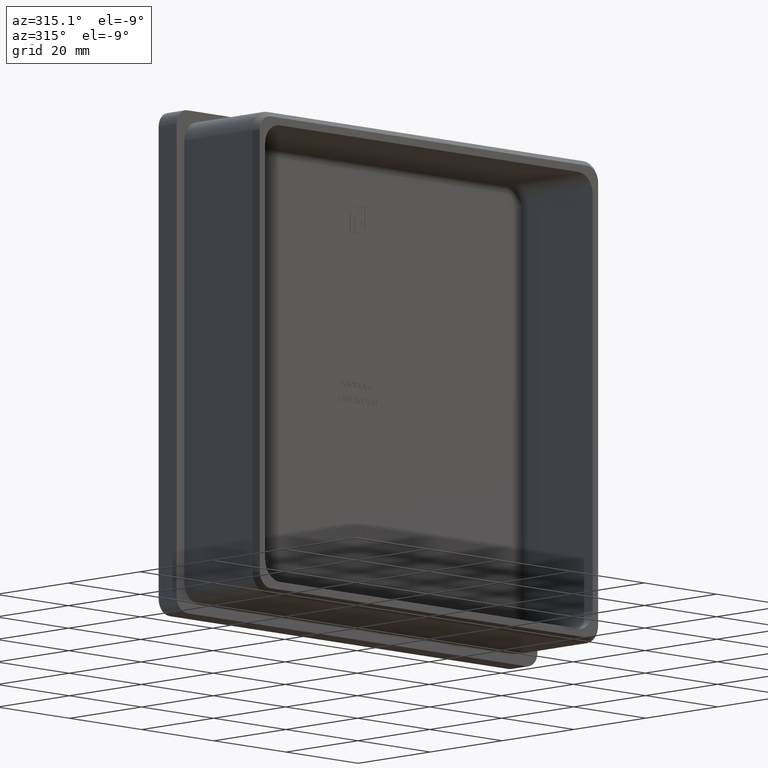
[diagram: clean part render]
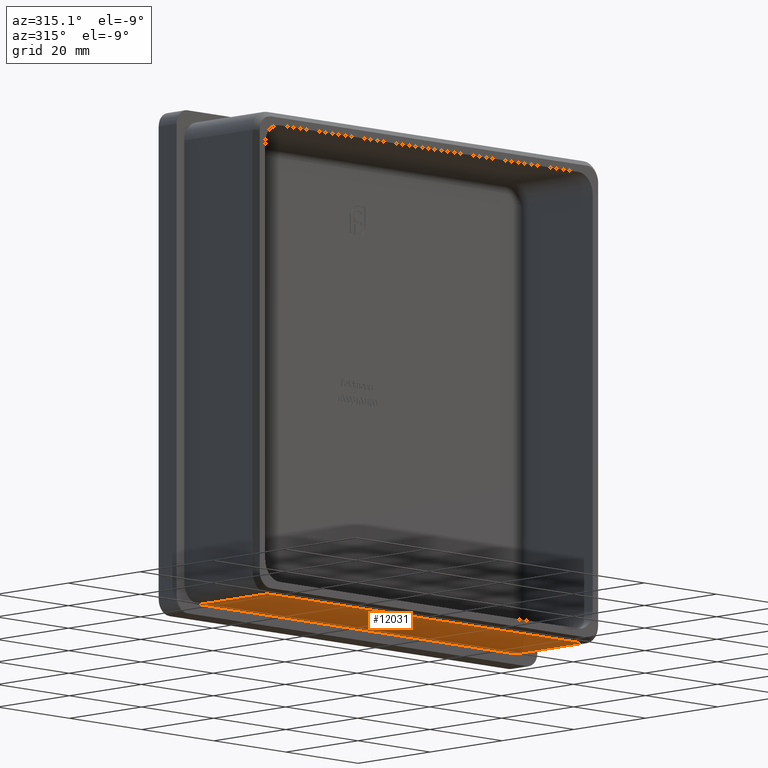
[diagram: same view with one face highlighted and labeled with its STEP entity id]
A machine part, auxiliary view. The second image highlights one B-rep face of the part: STEP entity #12031.
In plain terms, the highlighted planar face has unit normal (-0, 0, 1).
Its self-contained STEP definition (entity closure, byte-faithful):
#107 = CARTESIAN_POINT ( 'NONE',  ( -43.90000000000000568, -20.00000000000000000, -47.90000000000001279 ) ) ;
#421 = EDGE_CURVE ( 'NONE', #14256, #17906, #13255, .T. ) ;
#1428 = CARTESIAN_POINT ( 'NONE',  ( 43.89999999999997726, 0.000000000000000000, -47.90000000000001279 ) ) ;
#2065 = AXIS2_PLACEMENT_3D ( 'NONE', #8983, #17408, #11604 ) ;
#2102 = ORIENTED_EDGE ( 'NONE', *, *, #12262, .T. ) ;
#2745 = DIRECTION ( 'NONE',  ( -1.000000000000000000, 0.000000000000000000, -0.000000000000000000 ) ) ;
#2919 = DIRECTION ( 'NONE',  ( 0.000000000000000000, 1.000000000000000000, -0.000000000000000000 ) ) ;
#3433 = CARTESIAN_POINT ( 'NONE',  ( -47.90000000000001279, -0.000000000000000000, -47.90000000000001279 ) ) ;
#3459 = CARTESIAN_POINT ( 'NONE',  ( 43.90000000000000568, -18.99999999999998579, -47.90000000000001279 ) ) ;
#3795 = EDGE_CURVE ( 'NONE', #6249, #14256, #17591, .T. ) ;
#4126 = VECTOR ( 'NONE', #2745, 1000.000000000000000 ) ;
#4381 = ORIENTED_EDGE ( 'NONE', *, *, #3795, .T. ) ;
#4535 = VECTOR ( 'NONE', #11702, 1000.000000000000000 ) ;
#5661 = CARTESIAN_POINT ( 'NONE',  ( -43.90000000000000568, -18.99999999999998579, -47.90000000000001279 ) ) ;
#5677 = FACE_OUTER_BOUND ( 'NONE', #10477, .T. ) ;
#5739 = VERTEX_POINT ( 'NONE', #13023 ) ;
#6249 = VERTEX_POINT ( 'NONE', #11287 ) ;
#7922 = EDGE_CURVE ( 'NONE', #5739, #6249, #10975, .T. ) ;
#8983 = CARTESIAN_POINT ( 'NONE',  ( -47.90000000000001279, -20.00000000000000000, -47.90000000000001279 ) ) ;
#9278 = VECTOR ( 'NONE', #13125, 1000.000000000000000 ) ;
#9359 = LINE ( 'NONE', #5661, #4126 ) ;
#10106 = CARTESIAN_POINT ( 'NONE',  ( 43.90000000000000568, -20.00000000000000000, -47.90000000000001279 ) ) ;
#10477 = EDGE_LOOP ( 'NONE', ( #16605, #2102, #11615, #4381 ) ) ;
#10975 = LINE ( 'NONE', #107, #17991 ) ;
#11287 = CARTESIAN_POINT ( 'NONE',  ( -43.90000000000000568, 0.000000000000000000, -47.90000000000001279 ) ) ;
#11604 = DIRECTION ( 'NONE',  ( 1.000000000000000000, 0.000000000000000000, 0.000000000000000000 ) ) ;
#11615 = ORIENTED_EDGE ( 'NONE', *, *, #7922, .T. ) ;
#11702 = DIRECTION ( 'NONE',  ( -0.000000000000000000, -1.000000000000000000, -0.000000000000000000 ) ) ;
#12031 = ADVANCED_FACE ( 'NONE', ( #5677 ), #14336, .F. ) ;
#12262 = EDGE_CURVE ( 'NONE', #17906, #5739, #9359, .T. ) ;
#13023 = CARTESIAN_POINT ( 'NONE',  ( -43.90000000000000568, -18.99999999999998579, -47.90000000000001279 ) ) ;
#13125 = DIRECTION ( 'NONE',  ( 1.000000000000000000, 0.000000000000000000, 0.000000000000000000 ) ) ;
#13255 = LINE ( 'NONE', #10106, #4535 ) ;
#14256 = VERTEX_POINT ( 'NONE', #1428 ) ;
#14336 = PLANE ( 'NONE',  #2065 ) ;
#16605 = ORIENTED_EDGE ( 'NONE', *, *, #421, .T. ) ;
#17408 = DIRECTION ( 'NONE',  ( -0.000000000000000000, 0.000000000000000000, 1.000000000000000000 ) ) ;
#17591 = LINE ( 'NONE', #3433, #9278 ) ;
#17906 = VERTEX_POINT ( 'NONE', #3459 ) ;
#17991 = VECTOR ( 'NONE', #2919, 1000.000000000000000 ) ;